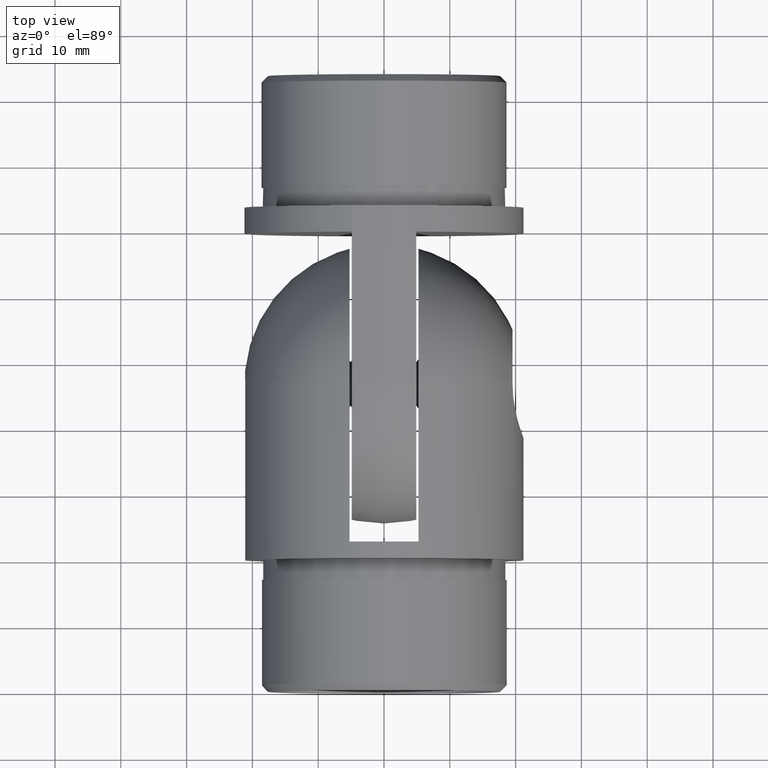
[diagram: clean part render]
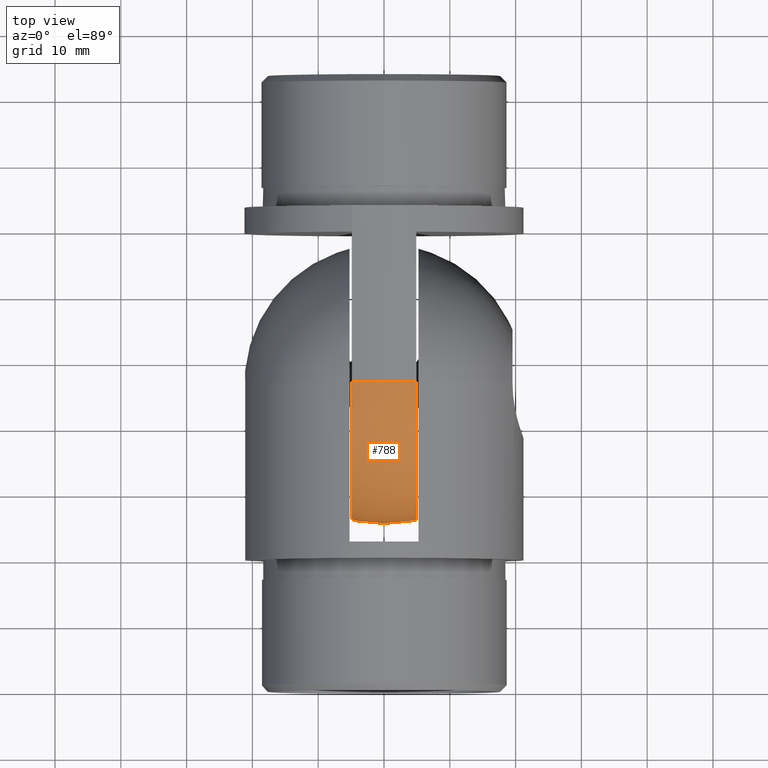
[diagram: same view with one face highlighted and labeled with its STEP entity id]
A machine part, top view. The second image highlights one B-rep face of the part: STEP entity #788.
In plain terms, the highlighted spherical surface has radius 21.2 mm.
Its self-contained STEP definition (entity closure, byte-faithful):
#168 = VERTEX_POINT ( 'NONE', #713 ) ;
#316 = VERTEX_POINT ( 'NONE', #11897 ) ;
#361 = DIRECTION ( 'NONE',  ( 0.0000000000000000000, 0.0000000000000000000, 1.000000000000000000 ) ) ;
#713 = CARTESIAN_POINT ( 'NONE',  ( -4.899999999999999500, 26.79999999999999700, 20.62595452336691400 ) ) ;
#788 = ADVANCED_FACE ( 'NONE', ( #15762 ), #9084, .T. ) ;
#1238 = DIRECTION ( 'NONE',  ( 0.0000000000000000000, 0.0000000000000000000, 1.000000000000000000 ) ) ;
#1632 = ORIENTED_EDGE ( 'NONE', *, *, #20216, .F. ) ;
#1889 = AXIS2_PLACEMENT_3D ( 'NONE', #2179, #16365, #6888 ) ;
#2179 = CARTESIAN_POINT ( 'NONE',  ( 0.0000000000000000000, 26.79999999999999700, 3.469446951953614200E-015 ) ) ;
#2671 = AXIS2_PLACEMENT_3D ( 'NONE', #7323, #12008, #18561 ) ;
#3297 = VERTEX_POINT ( 'NONE', #9147 ) ;
#3730 = DIRECTION ( 'NONE',  ( 0.0000000000000000000, -1.000000000000000000, -1.224646799147353200E-016 ) ) ;
#4272 = DIRECTION ( 'NONE',  ( -0.0000000000000000000, 1.000000000000000000, 0.0000000000000000000 ) ) ;
#5556 = AXIS2_PLACEMENT_3D ( 'NONE', #7329, #4272, #1238 ) ;
#5811 = CIRCLE ( 'NONE', #12571, 21.19999999999999900 ) ;
#6656 = CARTESIAN_POINT ( 'NONE',  ( 4.900000000000001200, 26.79999999999999700, 0.0000000000000000000 ) ) ;
#6725 = CIRCLE ( 'NONE', #1889, 21.19999999999999900 ) ;
#6888 = DIRECTION ( 'NONE',  ( 0.0000000000000000000, 0.0000000000000000000, 1.000000000000000000 ) ) ;
#7323 = CARTESIAN_POINT ( 'NONE',  ( -4.899999999999999500, 26.79999999999999700, 0.0000000000000000000 ) ) ;
#7329 = CARTESIAN_POINT ( 'NONE',  ( 0.0000000000000000000, 26.79999999999999700, 3.469446951953614200E-015 ) ) ;
#7573 = VERTEX_POINT ( 'NONE', #11846 ) ;
#7989 = EDGE_CURVE ( 'NONE', #168, #3297, #6725, .T. ) ;
#8150 = EDGE_LOOP ( 'NONE', ( #18283, #15856, #16151, #1632 ) ) ;
#9084 = SPHERICAL_SURFACE ( 'NONE', #5556, 21.19999999999999900 ) ;
#9147 = CARTESIAN_POINT ( 'NONE',  ( 4.900000000000001200, 26.79999999999999700, 20.62595452336691800 ) ) ;
#9691 = DIRECTION ( 'NONE',  ( -1.000000000000000000, -0.0000000000000000000, 0.0000000000000000000 ) ) ;
#10251 = CIRCLE ( 'NONE', #2671, 20.62595452336691400 ) ;
#11805 = CARTESIAN_POINT ( 'NONE',  ( 0.0000000000000000000, 26.79999999999999700, -3.469446951953614200E-015 ) ) ;
#11846 = CARTESIAN_POINT ( 'NONE',  ( 4.900000000000001200, 26.80000000000000100, -20.62595452336691800 ) ) ;
#11897 = CARTESIAN_POINT ( 'NONE',  ( -4.899999999999999500, 26.80000000000000100, -20.62595452336691400 ) ) ;
#12008 = DIRECTION ( 'NONE',  ( -1.000000000000000000, -0.0000000000000000000, 0.0000000000000000000 ) ) ;
#12571 = AXIS2_PLACEMENT_3D ( 'NONE', #11805, #3730, #13252 ) ;
#13252 = DIRECTION ( 'NONE',  ( 0.0000000000000000000, 1.636531581110195400E-016, -1.000000000000000000 ) ) ;
#14009 = AXIS2_PLACEMENT_3D ( 'NONE', #6656, #9691, #361 ) ;
#15762 = FACE_OUTER_BOUND ( 'NONE', #8150, .T. ) ;
#15856 = ORIENTED_EDGE ( 'NONE', *, *, #17000, .T. ) ;
#16151 = ORIENTED_EDGE ( 'NONE', *, *, #20099, .F. ) ;
#16365 = DIRECTION ( 'NONE',  ( 0.0000000000000000000, 1.000000000000000000, 0.0000000000000000000 ) ) ;
#17000 = EDGE_CURVE ( 'NONE', #3297, #7573, #19523, .T. ) ;
#18283 = ORIENTED_EDGE ( 'NONE', *, *, #7989, .T. ) ;
#18561 = DIRECTION ( 'NONE',  ( 0.0000000000000000000, 0.0000000000000000000, 1.000000000000000000 ) ) ;
#19523 = CIRCLE ( 'NONE', #14009, 20.62595452336691800 ) ;
#20099 = EDGE_CURVE ( 'NONE', #316, #7573, #5811, .T. ) ;
#20216 = EDGE_CURVE ( 'NONE', #168, #316, #10251, .T. ) ;